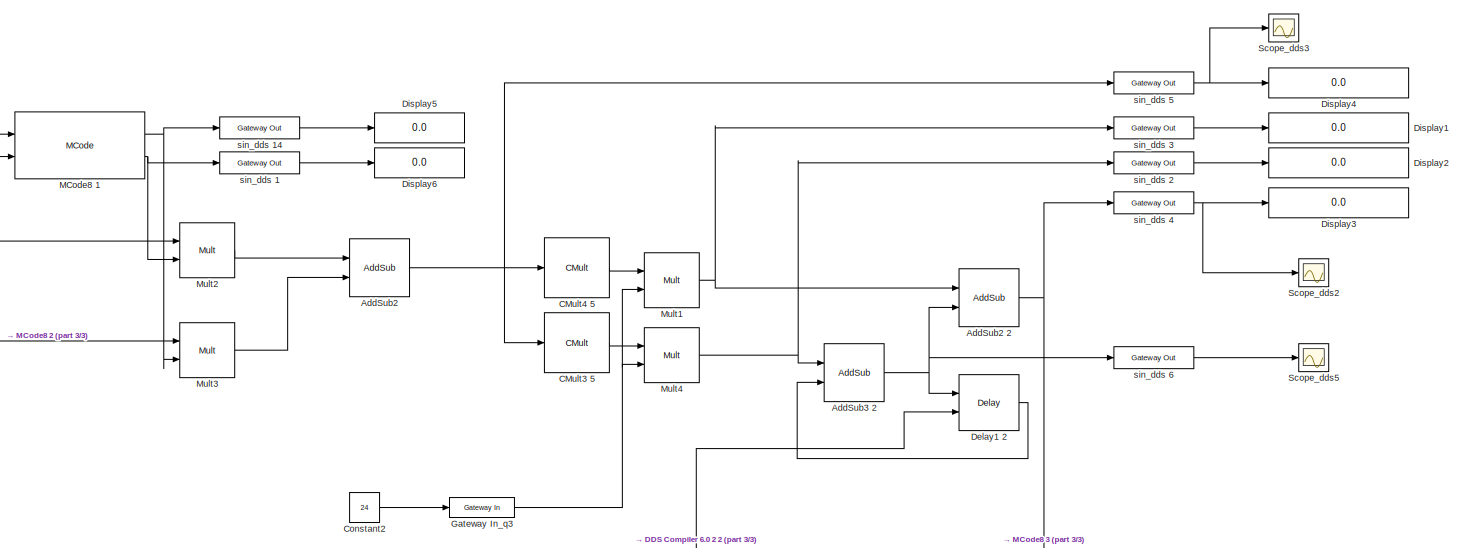
[diagram: root canvas - part 1/3, top right region]
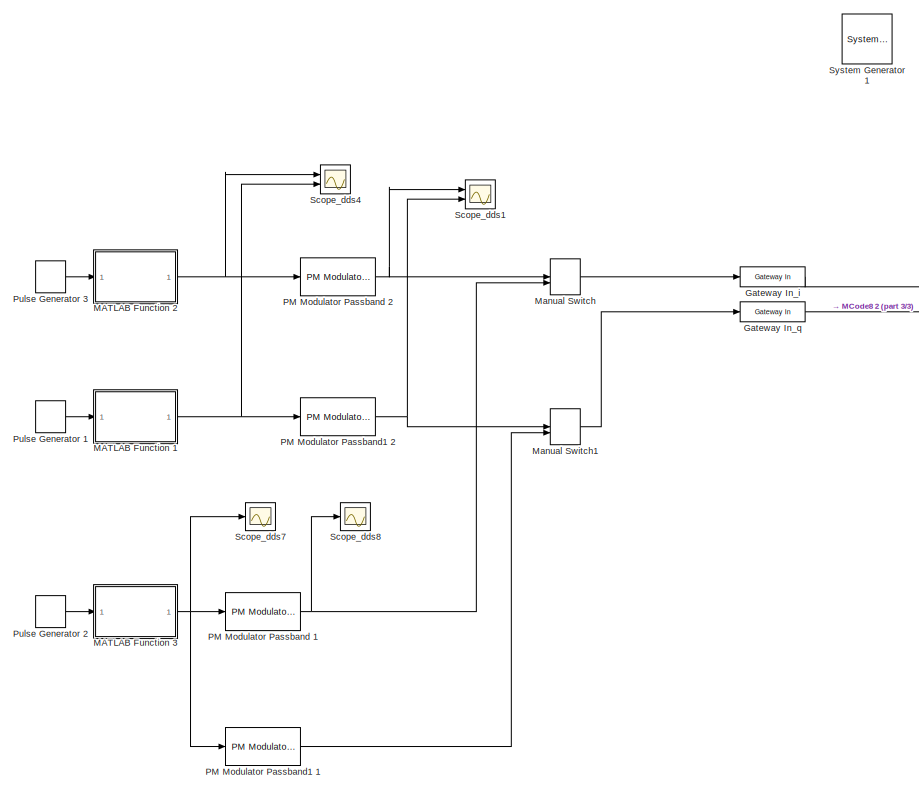
[diagram: root canvas - part 2/3, bottom left region]
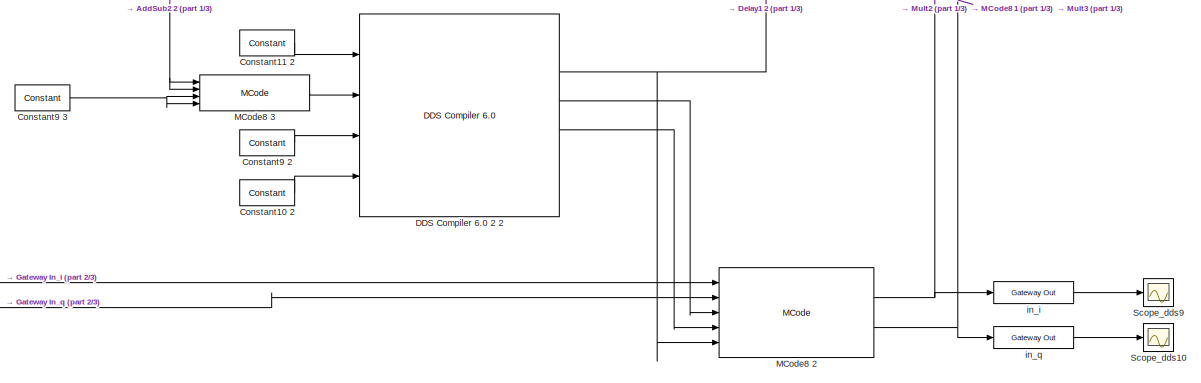
[diagram: root canvas - part 3/3, bottom center region]
MODEL slx_692d7a36e733
KIND model
CONFIG AbsTol = auto
CONFIG EnableMultiTasking = off
CONFIG FixedStep = auto
CONFIG MaxStep = auto
CONFIG MinStep = auto
CONFIG RelTol = 1e-3
CONFIG SampleTimeConstraint = Unconstrained
CONFIG Solver = VariableStepAuto
CONFIG SolverName = VariableStepAuto
CONFIG StartTime = 0.0
CONFIG StopTime = 0.4
BLOCK [Reference]  System Generator1  REF=xbsIndex_r4/ System Generator
  AttributesFormatString = System\nGenerator
  Ports = []
  SourceBlock = xbsIndex_r4/ System Generator
  SourceType = Xilinx System Generator Block
  Tag = genX
  UserDataPersistent = on
BLOCK [Reference] AddSub2  REF=xbsIndex_r4/AddSub
  Ports = [2, 1]
  SourceBlock = xbsIndex_r4/AddSub
  SourceType = Xilinx Adder/Subtracter Block
BLOCK [Reference] AddSub2 2  REF=xbsIndex_r4/AddSub
  Ports = [2, 1]
  SourceBlock = xbsIndex_r4/AddSub
  SourceType = Xilinx Adder/Subtracter Block
BLOCK [Reference] AddSub3 2  REF=xbsIndex_r4/AddSub
  Ports = [2, 1]
  SourceBlock = xbsIndex_r4/AddSub
  SourceType = Xilinx Adder/Subtracter Block
BLOCK [Reference] CMult3 5  REF=xbsIndex_r4/CMult
  Ports = [1, 1]
  SourceBlock = xbsIndex_r4/CMult
  SourceType = Xilinx Constant Multiplier Block
BLOCK [Reference] CMult4 5  REF=xbsIndex_r4/CMult
  Ports = [1, 1]
  SourceBlock = xbsIndex_r4/CMult
  SourceType = Xilinx Constant Multiplier Block
BLOCK [Reference] Constant10 2  REF=xbsIndex_r4/Constant
  Ports = [0, 1]
  SourceBlock = xbsIndex_r4/Constant
  SourceType = Xilinx Constant Block Block
BLOCK [Reference] Constant11 2  REF=xbsIndex_r4/Constant
  Ports = [0, 1]
  SourceBlock = xbsIndex_r4/Constant
  SourceType = Xilinx Constant Block Block
BLOCK [Constant] Constant2
  Value = 24
BLOCK [Reference] Constant9 2  REF=xbsIndex_r4/Constant
  Ports = [0, 1]
  SourceBlock = xbsIndex_r4/Constant
  SourceType = Xilinx Constant Block Block
BLOCK [Reference] Constant9 3  REF=xbsIndex_r4/Constant
  Ports = [0, 1]
  SourceBlock = xbsIndex_r4/Constant
  SourceType = Xilinx Constant Block Block
BLOCK [Reference] DDS Compiler 6.0 2 2  REF=xbsIndex_r4/DDS Compiler 6.0 
  Ports = [4, 6]
  SourceBlock = xbsIndex_r4/DDS Compiler 6.0
  SourceType = Xilinx DDS Compiler 6.0 Block
BLOCK [Reference] Delay1 2  REF=xbsIndex_r4/Delay
  Ports = [2, 1]
  SourceBlock = xbsIndex_r4/Delay
  SourceType = Xilinx Delay Block
BLOCK [Display] Display1
  Decimation = 1
  Format = long
  Ports = [1]
BLOCK [Display] Display2
  Decimation = 1
  Format = long
  Ports = [1]
BLOCK [Display] Display3
  Decimation = 1
  Format = long
  Ports = [1]
BLOCK [Display] Display4
  Decimation = 1
  Format = long
  Ports = [1]
BLOCK [Display] Display5
  Decimation = 1
  Ports = [1]
BLOCK [Display] Display6
  Decimation = 1
  Ports = [1]
BLOCK [Reference] Gateway In_i  REF=xbsIndex_r4/Gateway In
  Ports = [1, 1]
  SourceBlock = xbsIndex_r4/Gateway In
  SourceType = Xilinx Gateway In Block
BLOCK [Reference] Gateway In_q  REF=xbsIndex_r4/Gateway In
  Ports = [1, 1]
  SourceBlock = xbsIndex_r4/Gateway In
  SourceType = Xilinx Gateway In Block
BLOCK [Reference] Gateway In_q3  REF=xbsIndex_r4/Gateway In
  Ports = [1, 1]
  SourceBlock = xbsIndex_r4/Gateway In
  SourceType = Xilinx Gateway In Block
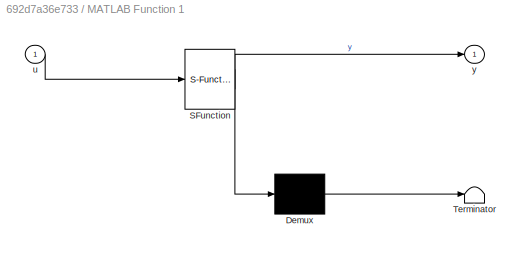
BLOCK [SubSystem] MATLAB Function 1
  ErrorFcn = Stateflow.Translate.translate
  PermitHierarchicalResolution = ExplicitOnly
  Ports = [1, 1]
  RequestExecContextInheritance = off
  SFBlockType = MATLAB Function
  TreatAsAtomicUnit = on
BLOCK [Demux] MATLAB Function 1/ Demux 
  Outputs = 1
  Ports = [1, 1]
BLOCK [S-Function] MATLAB Function 1/ SFunction 
  EnableBusSupport = on
  FunctionName = sf_sfun
  PortCounts = [1 2]
  Ports = [1, 2]
  SFcnIsStateOwnerBlock = off
  SFunctionDeploymentMode = off
  Tag = Stateflow S-Function ofur3 1
BLOCK [Terminator] MATLAB Function 1/ Terminator 
BLOCK [Inport] MATLAB Function 1/u
  IconDisplay = Port number
BLOCK [Outport] MATLAB Function 1/y
  IconDisplay = Port number
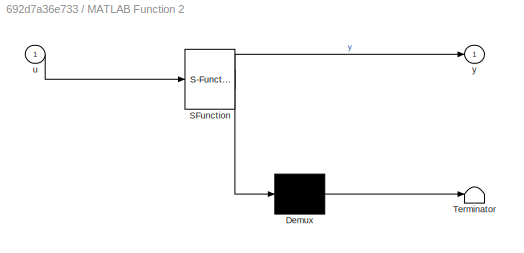
BLOCK [SubSystem] MATLAB Function 2
  ErrorFcn = Stateflow.Translate.translate
  PermitHierarchicalResolution = ExplicitOnly
  Ports = [1, 1]
  RequestExecContextInheritance = off
  SFBlockType = MATLAB Function
  TreatAsAtomicUnit = on
BLOCK [Demux] MATLAB Function 2/ Demux 
  Outputs = 1
  Ports = [1, 1]
BLOCK [S-Function] MATLAB Function 2/ SFunction 
  EnableBusSupport = on
  FunctionName = sf_sfun
  PortCounts = [1 2]
  Ports = [1, 2]
  SFcnIsStateOwnerBlock = off
  SFunctionDeploymentMode = off
  Tag = Stateflow S-Function ofur3 4
BLOCK [Terminator] MATLAB Function 2/ Terminator 
BLOCK [Inport] MATLAB Function 2/u
  IconDisplay = Port number
BLOCK [Outport] MATLAB Function 2/y
  IconDisplay = Port number
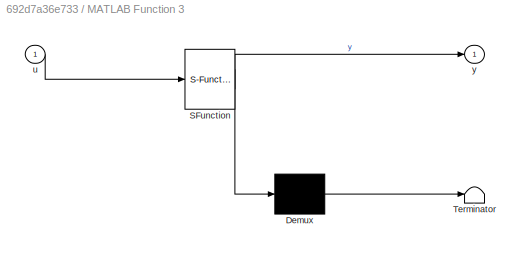
BLOCK [SubSystem] MATLAB Function 3
  ErrorFcn = Stateflow.Translate.translate
  PermitHierarchicalResolution = ExplicitOnly
  Ports = [1, 1]
  RequestExecContextInheritance = off
  SFBlockType = MATLAB Function
  TreatAsAtomicUnit = on
BLOCK [Demux] MATLAB Function 3/ Demux 
  Outputs = 1
  Ports = [1, 1]
BLOCK [S-Function] MATLAB Function 3/ SFunction 
  EnableBusSupport = on
  FunctionName = sf_sfun
  PortCounts = [1 2]
  Ports = [1, 2]
  SFcnIsStateOwnerBlock = off
  SFunctionDeploymentMode = off
  Tag = Stateflow S-Function ofur3 2
BLOCK [Terminator] MATLAB Function 3/ Terminator 
BLOCK [Inport] MATLAB Function 3/u
  IconDisplay = Port number
BLOCK [Outport] MATLAB Function 3/y
  IconDisplay = Port number
BLOCK [Reference] MCode8 1  REF=xbsIndex_r4/MCode
  Ports = [2, 2]
  SourceBlock = xbsIndex_r4/MCode
  SourceType = Xilinx MCode Block Block
BLOCK [Reference] MCode8 2  REF=xbsIndex_r4/MCode
  Ports = [5, 2]
  SourceBlock = xbsIndex_r4/MCode
  SourceType = Xilinx MCode Block Block
BLOCK [Reference] MCode8 3  REF=xbsIndex_r4/MCode
  Ports = [4, 1]
  SourceBlock = xbsIndex_r4/MCode
  SourceType = Xilinx MCode Block Block
BLOCK [ManualSwitch] Manual Switch
BLOCK [ManualSwitch] Manual Switch1
BLOCK [Reference] Mult1  REF=xbsIndex_r4/Mult
  Ports = [2, 1]
  SourceBlock = xbsIndex_r4/Mult
  SourceType = Xilinx Multiplier Block
BLOCK [Reference] Mult2  REF=xbsIndex_r4/Mult
  Ports = [2, 1]
  SourceBlock = xbsIndex_r4/Mult
  SourceType = Xilinx Multiplier Block
BLOCK [Reference] Mult3  REF=xbsIndex_r4/Mult
  Ports = [2, 1]
  SourceBlock = xbsIndex_r4/Mult
  SourceType = Xilinx Multiplier Block
BLOCK [Reference] Mult4  REF=xbsIndex_r4/Mult
  Ports = [2, 1]
  SourceBlock = xbsIndex_r4/Mult
  SourceType = Xilinx Multiplier Block
BLOCK [Reference] PM Modulator Passband 1  REF=commanapbnd3/PM
Modulator
Passband
  Ports = [1, 1]
  SourceBlock = commanapbnd3/PM\nModulator\nPassband
  SourceProductBaseCode = CM
  SourceProductName = Communications System Toolbox
  SourceType = PM Modulator Passband
BLOCK [Reference] PM Modulator Passband 2  REF=commanapbnd3/PM
Modulator
Passband
  Ports = [1, 1]
  SourceBlock = commanapbnd3/PM\nModulator\nPassband
  SourceProductBaseCode = CM
  SourceProductName = Communications System Toolbox
  SourceType = PM Modulator Passband
BLOCK [Reference] PM Modulator Passband1 1  REF=commanapbnd3/PM
Modulator
Passband
  Ports = [1, 1]
  SourceBlock = commanapbnd3/PM\nModulator\nPassband
  SourceProductBaseCode = CM
  SourceProductName = Communications System Toolbox
  SourceType = PM Modulator Passband
BLOCK [Reference] PM Modulator Passband1 2  REF=commanapbnd3/PM
Modulator
Passband
  Ports = [1, 1]
  SourceBlock = commanapbnd3/PM\nModulator\nPassband
  SourceProductBaseCode = CM
  SourceProductName = Communications System Toolbox
  SourceType = PM Modulator Passband
BLOCK [DiscretePulseGenerator] Pulse Generator 1
  Period = 120
  PhaseDelay = 60
  Ports = [0, 1]
  PulseWidth = 60
  SampleTime = 1/30720000
BLOCK [DiscretePulseGenerator] Pulse Generator 2
  Period = 120
  Ports = [0, 1]
  PulseWidth = 60
  SampleTime = 1/30720000
BLOCK [DiscretePulseGenerator] Pulse Generator 3
  Period = 120
  Ports = [0, 1]
  PulseWidth = 60
  SampleTime = 1/30720000
BLOCK [Scope] Scope_dds1
  Floating = off
  NumInputPorts = 2
  Ports = [2]
  ScopeSpecificationString = Simulink.scopes.TimeScopeBlockCfg('CurrentConfiguration', extmgr.ConfigurationSet(extmgr.Configuration('Core','General UI',true,'DisplayFullSourceName',true),extmgr.Configuration('Core','Source UI',true),extmgr.Configuration('Sources','WiredSimulink',true,'DataLoggingVariableName','ScopeData1'),extmgr.Configuration('Visuals','Time Domain',true,'SerializedDisplays',{struct('MinYLimReal','-1.25','Ma...<+2489ch>
BLOCK [Scope] Scope_dds10
  Floating = off
  NumInputPorts = 1
  Ports = [1]
  ScopeSpecificationString = Simulink.scopes.TimeScopeBlockCfg('CurrentConfiguration', extmgr.ConfigurationSet(extmgr.Configuration('Core','General UI',true,'DisplayFullSourceName',true),extmgr.Configuration('Core','Source UI',true),extmgr.Configuration('Sources','WiredSimulink',true,'DataLoggingVariableName','ScopeData2'),extmgr.Configuration('Visuals','Time Domain',true,'SerializedDisplays',{struct('MinYLimReal','-0.69168',...<+1797ch>
BLOCK [Scope] Scope_dds2
  Floating = off
  NumInputPorts = 1
  Ports = [1]
  ScopeSpecificationString = Simulink.scopes.TimeScopeBlockCfg('CurrentConfiguration', extmgr.ConfigurationSet(extmgr.Configuration('Core','General UI',true,'DisplayFullSourceName',true),extmgr.Configuration('Core','Source UI',true),extmgr.Configuration('Sources','WiredSimulink',true,'DataLoggingVariableName','ScopeData6'),extmgr.Configuration('Visuals','Time Domain',true,'SerializedDisplays',{struct('MinYLimReal','-0.00029',...<+1839ch>
BLOCK [Scope] Scope_dds3
  Floating = off
  NumInputPorts = 1
  Ports = [1]
  ScopeSpecificationString = Simulink.scopes.TimeScopeBlockCfg('CurrentConfiguration', extmgr.ConfigurationSet(extmgr.Configuration('Core','General UI',true,'DisplayFullSourceName',true),extmgr.Configuration('Core','Source UI',true),extmgr.Configuration('Sources','WiredSimulink',true,'DataLoggingVariableName','ScopeData7'),extmgr.Configuration('Visuals','Time Domain',true,'SerializedDisplays',{struct('MinYLimReal','-0.88257',...<+1802ch>
BLOCK [Scope] Scope_dds4
  Floating = off
  NumInputPorts = 2
  Ports = [2]
  ScopeSpecificationString = Simulink.scopes.TimeScopeBlockCfg('CurrentConfiguration', extmgr.ConfigurationSet(extmgr.Configuration('Core','General UI',true,'DisplayFullSourceName',true),extmgr.Configuration('Core','Source UI',true),extmgr.Configuration('Sources','WiredSimulink',true,'DataLoggingVariableName','ScopeData3'),extmgr.Configuration('Visuals','Time Domain',true,'SerializedDisplays',{struct('MinYLimReal','-0.875','M...<+2455ch>
BLOCK [Scope] Scope_dds5
  Floating = off
  NumInputPorts = 1
  Ports = [1]
  ScopeSpecificationString = Simulink.scopes.TimeScopeBlockCfg('CurrentConfiguration', extmgr.ConfigurationSet(extmgr.Configuration('Core','General UI',true,'DisplayFullSourceName',true),extmgr.Configuration('Core','Source UI',true),extmgr.Configuration('Sources','WiredSimulink',true,'DataLoggingVariableName','ScopeData8'),extmgr.Configuration('Visuals','Time Domain',true,'SerializedDisplays',{struct('MinYLimReal','-0.00005',...<+1805ch>
BLOCK [Scope] Scope_dds7
  Floating = off
  NumInputPorts = 1
  Ports = [1]
  ScopeSpecificationString = Simulink.scopes.TimeScopeBlockCfg('CurrentConfiguration', extmgr.ConfigurationSet(extmgr.Configuration('Core','General UI',true,'DisplayFullSourceName',true),extmgr.Configuration('Core','Source UI',true),extmgr.Configuration('Sources','WiredSimulink',true,'DataLoggingVariableName','ScopeData4'),extmgr.Configuration('Visuals','Time Domain',true,'SerializedDisplays',{struct('MinYLimReal','-492919.00...<+1842ch>
BLOCK [Scope] Scope_dds8
  Floating = off
  NumInputPorts = 1
  Ports = [1]
  ScopeSpecificationString = Simulink.scopes.TimeScopeBlockCfg('CurrentConfiguration', extmgr.ConfigurationSet(extmgr.Configuration('Core','General UI',true,'DisplayFullSourceName',true),extmgr.Configuration('Core','Source UI',true),extmgr.Configuration('Sources','WiredSimulink',true,'DataLoggingVariableName','ScopeData5'),extmgr.Configuration('Visuals','Time Domain',true,'SerializedDisplays',{struct('MinYLimReal','-492919.00...<+1857ch>
BLOCK [Scope] Scope_dds9
  Floating = off
  NumInputPorts = 1
  Ports = [1]
  ScopeSpecificationString = Simulink.scopes.TimeScopeBlockCfg('CurrentConfiguration', extmgr.ConfigurationSet(extmgr.Configuration('Core','General UI',true,'DisplayFullSourceName',true),extmgr.Configuration('Core','Source UI',true),extmgr.Configuration('Sources','WiredSimulink',true),extmgr.Configuration('Visuals','Time Domain',true,'SerializedDisplays',{struct('MinYLimReal','-0.88318','MaxYLimReal','0.88318','YLabelReal',''...<+1758ch>
BLOCK [Reference] in_i  REF=xbsIndex_r4/Gateway Out
  Ports = [1, 1]
  SourceBlock = xbsIndex_r4/Gateway Out
  SourceType = Xilinx Gateway Out Block
BLOCK [Reference] in_q  REF=xbsIndex_r4/Gateway Out
  Ports = [1, 1]
  SourceBlock = xbsIndex_r4/Gateway Out
  SourceType = Xilinx Gateway Out Block
BLOCK [Reference] sin_dds 1  REF=xbsIndex_r4/Gateway Out
  Ports = [1, 1]
  SourceBlock = xbsIndex_r4/Gateway Out
  SourceType = Xilinx Gateway Out Block
BLOCK [Reference] sin_dds 14  REF=xbsIndex_r4/Gateway Out
  Ports = [1, 1]
  SourceBlock = xbsIndex_r4/Gateway Out
  SourceType = Xilinx Gateway Out Block
BLOCK [Reference] sin_dds 2  REF=xbsIndex_r4/Gateway Out
  Ports = [1, 1]
  SourceBlock = xbsIndex_r4/Gateway Out
  SourceType = Xilinx Gateway Out Block
BLOCK [Reference] sin_dds 3  REF=xbsIndex_r4/Gateway Out
  Ports = [1, 1]
  SourceBlock = xbsIndex_r4/Gateway Out
  SourceType = Xilinx Gateway Out Block
BLOCK [Reference] sin_dds 4  REF=xbsIndex_r4/Gateway Out
  Ports = [1, 1]
  SourceBlock = xbsIndex_r4/Gateway Out
  SourceType = Xilinx Gateway Out Block
BLOCK [Reference] sin_dds 5  REF=xbsIndex_r4/Gateway Out
  Ports = [1, 1]
  SourceBlock = xbsIndex_r4/Gateway Out
  SourceType = Xilinx Gateway Out Block
BLOCK [Reference] sin_dds 6  REF=xbsIndex_r4/Gateway Out
  Ports = [1, 1]
  SourceBlock = xbsIndex_r4/Gateway Out
  SourceType = Xilinx Gateway Out Block
NET AddSub2 2:1 -> MCode8 3:1, MCode8 3:2, sin_dds 4:1
NET AddSub2:1 -> CMult3 5:1, CMult4 5:1, sin_dds 5:1
NET AddSub3 2:1 -> AddSub2 2:2, Delay1 2:1, sin_dds 6:1
LINE CMult3 5:1 -> Mult4:1
LINE CMult4 5:1 -> Mult1:1
LINE Constant10 2:1 -> DDS Compiler 6.0 2 2:4
LINE Constant11 2:1 -> DDS Compiler 6.0 2 2:1
LINE Constant2:1 -> Gateway In_q3:1
LINE Constant9 2:1 -> DDS Compiler 6.0 2 2:3
NET Constant9 3:1 -> MCode8 3:3, MCode8 3:4
NET DDS Compiler 6.0 2 2:2 -> Delay1 2:2, MCode8 2:5
LINE DDS Compiler 6.0 2 2:3 -> MCode8 2:3
LINE DDS Compiler 6.0 2 2:4 -> MCode8 2:4
LINE Delay1 2:1 -> AddSub3 2:2
LINE Gateway In_i:1 -> MCode8 2:1
NET Gateway In_q3:1 -> Mult1:2, Mult4:2
LINE Gateway In_q:1 -> MCode8 2:2
NET MATLAB Function 1:1 -> PM Modulator Passband1 2:1, Scope_dds4:2
NET MATLAB Function 2:1 -> PM Modulator Passband 2:1, Scope_dds4:1
NET MATLAB Function 3:1 -> PM Modulator Passband 1:1, PM Modulator Passband1 1:1, Scope_dds7:1
NET MCode8 1:1 -> Mult3:2, sin_dds 14:1
NET MCode8 1:2 -> Mult2:2, sin_dds 1:1
NET MCode8 2:1 -> MCode8 1:1, Mult2:1, in_i:1
NET MCode8 2:2 -> MCode8 1:2, Mult3:1, in_q:1
LINE MCode8 3:1 -> DDS Compiler 6.0 2 2:2
LINE Manual Switch1:1 -> Gateway In_q:1
LINE Manual Switch:1 -> Gateway In_i:1
NET Mult1:1 -> AddSub2 2:1, sin_dds 3:1
LINE Mult2:1 -> AddSub2:1
LINE Mult3:1 -> AddSub2:2
NET Mult4:1 -> AddSub3 2:1, sin_dds 2:1
NET PM Modulator Passband 1:1 -> Manual Switch:2, Scope_dds8:1
NET PM Modulator Passband 2:1 -> Manual Switch:1, Scope_dds1:1
LINE PM Modulator Passband1 1:1 -> Manual Switch1:2
NET PM Modulator Passband1 2:1 -> Manual Switch1:1, Scope_dds1:2
LINE Pulse Generator 1:1 -> MATLAB Function 1:1
LINE Pulse Generator 2:1 -> MATLAB Function 3:1
LINE Pulse Generator 3:1 -> MATLAB Function 2:1
LINE in_i:1 -> Scope_dds9:1
LINE in_q:1 -> Scope_dds10:1
LINE sin_dds 14:1 -> Display5:1
LINE sin_dds 1:1 -> Display6:1
LINE sin_dds 2:1 -> Display2:1
LINE sin_dds 3:1 -> Display1:1
NET sin_dds 4:1 -> Display3:1, Scope_dds2:1
NET sin_dds 5:1 -> Display4:1, Scope_dds3:1
LINE sin_dds 6:1 -> Scope_dds5:1
note: NET lines group one-source signal fan-out (src -> all destinations, sorted); 1:1 wires keep LINE
CHART MATLAB Function 
1 states=1 transitions=1
  STATE_LABEL 'eML_blk_kernel()'
  STATE_LABEL 'SCRIPT:\nfunction y = fcn(u)\n\npersistent B\npersistent D\npersistent E\npersistent C\npersistent F\npersistent n\n\npersistent A,\n\nA = [1 7 7 1 7 3 5 5];\n%A = [1 1 1 0 1 0 1 1 1 0 0 1 0 0 0 0];\n\n%A = [0.707 0.707 0.707 0.707 0.707 -0.707 -0.707 -0.707];\n\nif isempty(B)\n B = 0;\nend\n\nif isempty(D)\n D = 0;\nend\n\nif isempty(C)\n C = 0;\nend\n\nif isempty(F)\n F = 0;\nend\n\nif isempty(E)\n E = 0;\nend\n\nif isempty(n)\n n =...<+178ch>'  <repeated x3 — deduplicated; at blocks: MATLAB Function>
CHART MATLAB Function 
3 states=1 transitions=1
  STATE_LABEL 'eML_blk_kernel()'
CHART MATLAB Function 
2 states=1 transitions=1
  STATE_LABEL 'eML_blk_kernel()'
